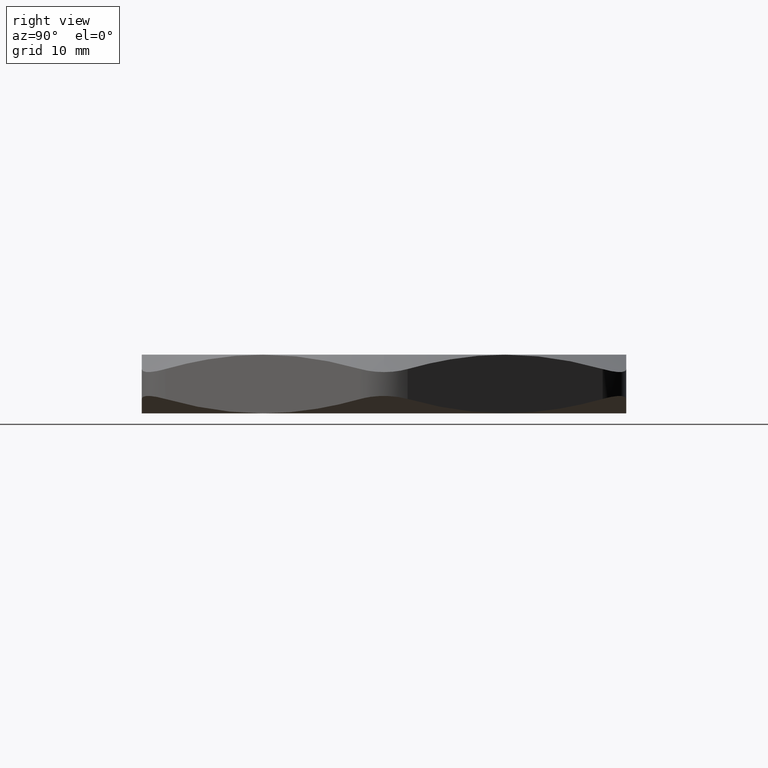
[diagram: clean part render]
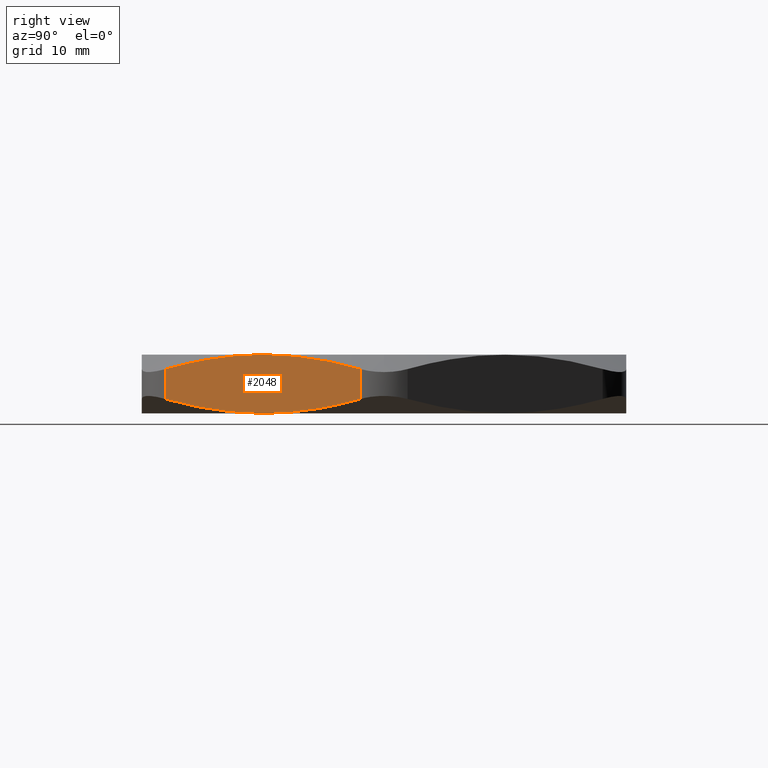
[diagram: same view with one face highlighted and labeled with its STEP entity id]
A machine part, right view. The second image highlights one B-rep face of the part: STEP entity #2048.
In plain terms, the highlighted planar face has unit normal (-0.866, 0.5, 0).
Its self-contained STEP definition (entity closure, byte-faithful):
#254 = CARTESIAN_POINT ( 'NONE',  ( 1.307993920598690100, -0.2944880735318566900, 0.03306035978662408300 ) ) ;
#259 = CARTESIAN_POINT ( 'NONE',  ( 1.158976470902577800, -0.5525938676198612900, -1.691398074202287700E-016 ) ) ;
#260 = CARTESIAN_POINT ( 'NONE',  ( 1.108512516844081500, -0.6400000000000000100, 0.0000000000000000000 ) ) ;
#261 = CARTESIAN_POINT ( 'NONE',  ( 1.208939987255790400, -0.4660545187712994400, 0.006967892365456228500 ) ) ;
#274 = CARTESIAN_POINT ( 'NONE',  ( 1.405847905476738500, -0.1249999999999996300, 0.07586042469470380400 ) ) ;
#281 = CARTESIAN_POINT ( 'NONE',  ( 1.108512516844081300, -0.6399999999999996800, 0.3100000000000000000 ) ) ;
#282 = CARTESIAN_POINT ( 'NONE',  ( 1.058048562785584900, -0.7274061323801382900, 0.3100000000000001600 ) ) ;
#283 = CARTESIAN_POINT ( 'NONE',  ( 1.008085046432372300, -0.8139454812286999200, 0.3030321076345437500 ) ) ;
#284 = CARTESIAN_POINT ( 'NONE',  ( 0.9090311130894730400, -0.9855119264681427800, 0.2769396402133760300 ) ) ;
#285 = CARTESIAN_POINT ( 'NONE',  ( 0.8599373099008876800, -1.070544887927558800, 0.2578622132226423600 ) ) ;
#286 = CARTESIAN_POINT ( 'NONE',  ( 0.8111771282114241800, -1.154999999999999800, 0.2341395753052962200 ) ) ;
#287 = CARTESIAN_POINT ( 'NONE',  ( 1.405847905476738500, -0.1249999999999995800, 0.2341395753052960000 ) ) ;
#288 = CARTESIAN_POINT ( 'NONE',  ( 1.357189406177627100, -0.2092789930061156000, 0.2578127430515864100 ) ) ;
#289 = CARTESIAN_POINT ( 'NONE',  ( 1.308149978651578900, -0.2942177730553229800, 0.2768865033834005400 ) ) ;
#290 = CARTESIAN_POINT ( 'NONE',  ( 1.233843861240845100, -0.4229197437238924100, 0.2964779973084573600 ) ) ;
#291 = CARTESIAN_POINT ( 'NONE',  ( 1.208950708344483000, -0.4660359493009709800, 0.3015058949488618200 ) ) ;
#292 = CARTESIAN_POINT ( 'NONE',  ( 1.171406501563931000, -0.5310644229747595300, 0.3065788379027887800 ) ) ;
#293 = CARTESIAN_POINT ( 'NONE',  ( 1.158857736063798200, -0.5527995223932575800, 0.3078589346480019600 ) ) ;
#294 = CARTESIAN_POINT ( 'NONE',  ( 1.133689931715795800, -0.5963914382389498000, 0.3095706329790761100 ) ) ;
#295 = CARTESIAN_POINT ( 'NONE',  ( 1.121074933927116700, -0.6182412553463119100, 0.3100000000000001100 ) ) ;
#296 = CARTESIAN_POINT ( 'NONE',  ( 1.108512516844081300, -0.6399999999999996800, 0.3100000000000000000 ) ) ;
#297 = CARTESIAN_POINT ( 'NONE',  ( 0.8111771282114241800, -1.154999999999999800, 0.2341395753052962200 ) ) ;
#298 = B_SPLINE_CURVE_WITH_KNOTS ( 'NONE', 3,
 ( #286, #285, #284, #283, #282, #281 ),
 .UNSPECIFIED., .F., .F.,
 ( 4, 2, 4 ),
 ( 0.003768077590883905500, 0.01138065098538848700, 0.01899322437989306800 ),
 .UNSPECIFIED. ) ;
#299 = B_SPLINE_CURVE_WITH_KNOTS ( 'NONE', 3,
 ( #296, #295, #294, #293, #292, #291, #290, #289, #288, #287 ),
 .UNSPECIFIED., .F., .F.,
 ( 4, 2, 2, 2, 4 ),
 ( 0.01899322437989306800, 0.02088828638684811800, 0.02278334839380316600, 0.02657347240771326700, 0.03415372043553347600 ),
 .UNSPECIFIED. ) ;
#397 = B_SPLINE_CURVE_WITH_KNOTS ( 'NONE', 3,
 ( #451, #450, #449, #448, #447, #446, #445, #444, #443, #442 ),
 .UNSPECIFIED., .F., .F.,
 ( 4, 2, 2, 2, 4 ),
 ( 0.01899322437989307100, 0.02088828638684811800, 0.02278334839380316600, 0.02657347240771327000, 0.03415372043553347600 ),
 .UNSPECIFIED. ) ;
#442 = CARTESIAN_POINT ( 'NONE',  ( 0.8111771282114240700, -1.154999999999999800, 0.07586042469470390100 ) ) ;
#443 = CARTESIAN_POINT ( 'NONE',  ( 0.8598356275105356600, -1.070721006993884000, 0.05218725694841351600 ) ) ;
#444 = CARTESIAN_POINT ( 'NONE',  ( 0.9088750550365841700, -0.9857822269446767600, 0.03311349661659964600 ) ) ;
#445 = CARTESIAN_POINT ( 'NONE',  ( 0.9831811724473175100, -0.8570802562761070700, 0.01352200269154271400 ) ) ;
#446 = CARTESIAN_POINT ( 'NONE',  ( 1.008074325343679200, -0.8139640506990290000, 0.008494105051138064300 ) ) ;
#447 = CARTESIAN_POINT ( 'NONE',  ( 1.045618532124231500, -0.7489355770252401600, 0.003421162097211205400 ) ) ;
#448 = CARTESIAN_POINT ( 'NONE',  ( 1.058167297624364300, -0.7272004776067422200, 0.002141065351997875000 ) ) ;
#449 = CARTESIAN_POINT ( 'NONE',  ( 1.083335101972366700, -0.6836085617610497800, 0.0004293670209238089100 ) ) ;
#450 = CARTESIAN_POINT ( 'NONE',  ( 1.095950099761045600, -0.6617587446536880000, -1.544667957355080600E-016 ) ) ;
#451 = CARTESIAN_POINT ( 'NONE',  ( 1.108512516844081500, -0.6400000000000000100, 0.0000000000000000000 ) ) ;
#479 = B_SPLINE_CURVE_WITH_KNOTS ( 'NONE', 3,
 ( #274, #2469, #254, #261, #259, #260 ),
 .UNSPECIFIED., .F., .F.,
 ( 4, 2, 4 ),
 ( 0.003768077590883897300, 0.01138065098538848900, 0.01899322437989307100 ),
 .UNSPECIFIED. ) ;
#480 = DIRECTION ( 'NONE',  ( -0.4999999999999998900, -0.8660254037844386000, 0.0000000000000000000 ) ) ;
#481 = DIRECTION ( 'NONE',  ( -0.8660254037844387100, 0.4999999999999999400, 0.0000000000000000000 ) ) ;
#482 = CARTESIAN_POINT ( 'NONE',  ( 0.7390083445627209100, -1.279999999999999800, 0.3100000000000000000 ) ) ;
#483 = AXIS2_PLACEMENT_3D ( 'NONE', #482, #481, #480 ) ;
#494 = PLANE ( 'NONE',  #483 ) ;
#495 = FACE_OUTER_BOUND ( 'NONE', #2049, .T. ) ;
#528 = CARTESIAN_POINT ( 'NONE',  ( 1.108512516844081300, -0.6399999999999996800, 0.3100000000000000000 ) ) ;
#529 = CARTESIAN_POINT ( 'NONE',  ( 1.405847905476738500, -0.1249999999999995800, 0.2341395753052960000 ) ) ;
#530 = DIRECTION ( 'NONE',  ( 0.0000000000000000000, 0.0000000000000000000, 1.000000000000000000 ) ) ;
#531 = VECTOR ( 'NONE', #530, 39.37007874015748100 ) ;
#532 = CARTESIAN_POINT ( 'NONE',  ( 1.405847905476738500, -0.1249999999999996300, 0.3100000000000000000 ) ) ;
#533 = LINE ( 'NONE', #532, #531 ) ;
#534 = CARTESIAN_POINT ( 'NONE',  ( 1.108512516844081500, -0.6400000000000000100, 0.0000000000000000000 ) ) ;
#535 = CARTESIAN_POINT ( 'NONE',  ( 1.405847905476738500, -0.1249999999999996300, 0.07586042469470380400 ) ) ;
#636 = CARTESIAN_POINT ( 'NONE',  ( 0.8111771282114240700, -1.154999999999999800, 0.07586042469470390100 ) ) ;
#637 = DIRECTION ( 'NONE',  ( 0.0000000000000000000, 0.0000000000000000000, -1.000000000000000000 ) ) ;
#638 = VECTOR ( 'NONE', #637, 39.37007874015748100 ) ;
#639 = CARTESIAN_POINT ( 'NONE',  ( 0.8111771282114241800, -1.154999999999999800, 0.3100000000000000000 ) ) ;
#640 = LINE ( 'NONE', #639, #638 ) ;
#1976 = ORIENTED_EDGE ( 'NONE', *, *, #1977, .F. ) ;
#1977 = EDGE_CURVE ( 'NONE', #2057, #2056, #299, .T. ) ;
#1978 = ORIENTED_EDGE ( 'NONE', *, *, #1979, .F. ) ;
#1979 = EDGE_CURVE ( 'NONE', #1980, #2057, #298, .T. ) ;
#1980 = VERTEX_POINT ( 'NONE', #297 ) ;
#1981 = ORIENTED_EDGE ( 'NONE', *, *, #2127, .T. ) ;
#2024 = EDGE_CURVE ( 'NONE', #2053, #2128, #397, .T. ) ;
#2048 = ADVANCED_FACE ( 'NONE', ( #495 ), #494, .F. ) ;
#2049 = EDGE_LOOP ( 'NONE', ( #2050, #2054, #1976, #1978, #1981, #2104 ) ) ;
#2050 = ORIENTED_EDGE ( 'NONE', *, *, #2051, .F. ) ;
#2051 = EDGE_CURVE ( 'NONE', #2052, #2053, #479, .T. ) ;
#2052 = VERTEX_POINT ( 'NONE', #535 ) ;
#2053 = VERTEX_POINT ( 'NONE', #534 ) ;
#2054 = ORIENTED_EDGE ( 'NONE', *, *, #2055, .T. ) ;
#2055 = EDGE_CURVE ( 'NONE', #2052, #2056, #533, .T. ) ;
#2056 = VERTEX_POINT ( 'NONE', #529 ) ;
#2057 = VERTEX_POINT ( 'NONE', #528 ) ;
#2104 = ORIENTED_EDGE ( 'NONE', *, *, #2024, .F. ) ;
#2127 = EDGE_CURVE ( 'NONE', #1980, #2128, #640, .T. ) ;
#2128 = VERTEX_POINT ( 'NONE', #636 ) ;
#2469 = CARTESIAN_POINT ( 'NONE',  ( 1.357087723787274900, -0.2094551120724405800, 0.05213778677735770400 ) ) ;